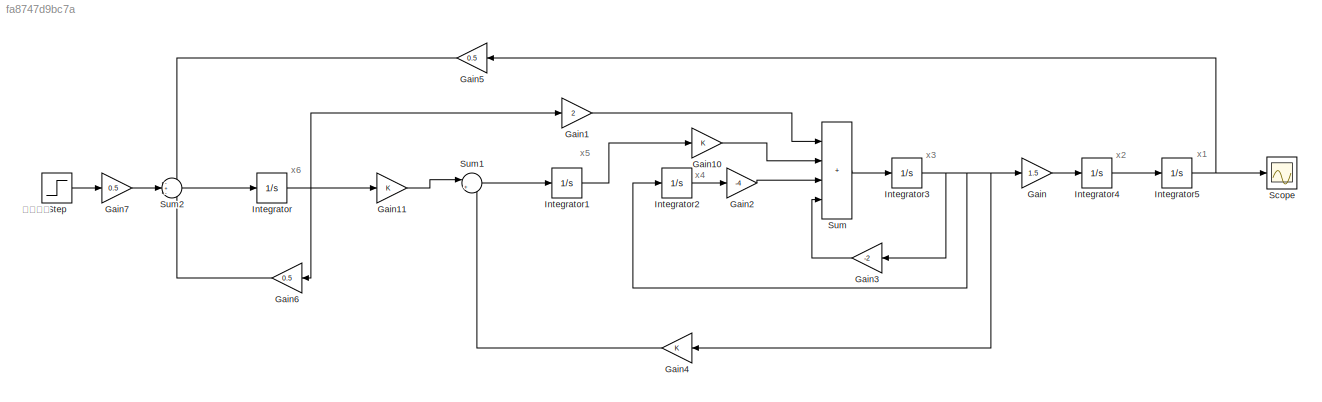
MODEL slx_fa8747d9bc7a
KIND model
CONFIG AbsTol = auto
CONFIG EnableMultiTasking = off
CONFIG FixedStep = auto
CONFIG MaxStep = auto
CONFIG MinStep = auto
CONFIG RelTol = 1e-3
CONFIG SampleTimeConstraint = Unconstrained
CONFIG SolverName = VariableStepAuto
CONFIG StartTime = 0.0
CONFIG StopTime = 100
BLOCK [Gain] Gain
  Gain = 1.5
BLOCK [Gain] Gain1
  Gain = 2
BLOCK [Gain] Gain10
BLOCK [Gain] Gain11
BLOCK [Gain] Gain2
  Gain = -4
BLOCK [Gain] Gain3
  Gain = -2
  NameLocation = top
BLOCK [Gain] Gain4
  NameLocation = top
BLOCK [Gain] Gain5
  Gain = 0.5
  NameLocation = top
BLOCK [Gain] Gain6
  Gain = 0.5
  NameLocation = top
BLOCK [Gain] Gain7
  Gain = 0.5
BLOCK [Integrator] Integrator
  Ports = [1, 1]
BLOCK [Integrator] Integrator1
  Ports = [1, 1]
BLOCK [Integrator] Integrator2
  Ports = [1, 1]
BLOCK [Integrator] Integrator3
  Ports = [1, 1]
BLOCK [Integrator] Integrator4
  Ports = [1, 1]
BLOCK [Integrator] Integrator5
  Ports = [1, 1]
BLOCK [Scope] Scope
  Floating = off
  NumInputPorts = 1
  Ports = [1]
  ScopeSpecificationString = Simulink.scopes.TimeScopeBlockCfg('CurrentConfiguration', extmgr.ConfigurationSet(extmgr.Configuration('Core','General UI',true,'FigureColor',[0.941176470588235 0.941176470588235 0.941176470588235]),extmgr.Configuration('Core','Source UI',true),extmgr.Configuration('Sources','WiredSimulink',true),extmgr.Configuration('Visuals','Time Domain',true,'SerializedDisplays',{struct('MinYLimReal','-509.908...<+1685ch>
BLOCK [Step] Step
  SampleTime = 0
BLOCK [Sum] Sum
  IconShape = rectangular
  Inputs = ++++
  Ports = [4, 1]
BLOCK [Sum] Sum1
  Inputs = |+-
  Ports = [2, 1]
BLOCK [Sum] Sum2
  Inputs = -+-
  Ports = [3, 1]
ANNOTATION (root): x1
ANNOTATION (root): x2
ANNOTATION (root): x3
ANNOTATION (root): x4
ANNOTATION (root): x5
ANNOTATION (root): x6
ANNOTATION (root): 阶跃输入
LINE Gain10:1 -> Sum:2
LINE Gain11:1 -> Sum1:1
LINE Gain1:1 -> Sum:1
LINE Gain2:1 -> Sum:3
LINE Gain3:1 -> Sum:4
LINE Gain4:1 -> Sum1:2
LINE Gain5:1 -> Sum2:1
LINE Gain6:1 -> Sum2:3
LINE Gain7:1 -> Sum2:2
LINE Gain:1 -> Integrator4:1
LINE Integrator1:1 -> Gain10:1
LINE Integrator2:1 -> Gain2:1
NET Integrator3:1 -> Gain3:1, Gain4:1, Gain:1, Integrator2:1
LINE Integrator4:1 -> Integrator5:1
NET Integrator5:1 -> Gain5:1, Scope:1
NET Integrator:1 -> Gain11:1, Gain1:1, Gain6:1
LINE Step:1 -> Gain7:1
LINE Sum1:1 -> Integrator1:1
LINE Sum2:1 -> Integrator:1
LINE Sum:1 -> Integrator3:1
note: NET lines group one-source signal fan-out (src -> all destinations, sorted); 1:1 wires keep LINE
